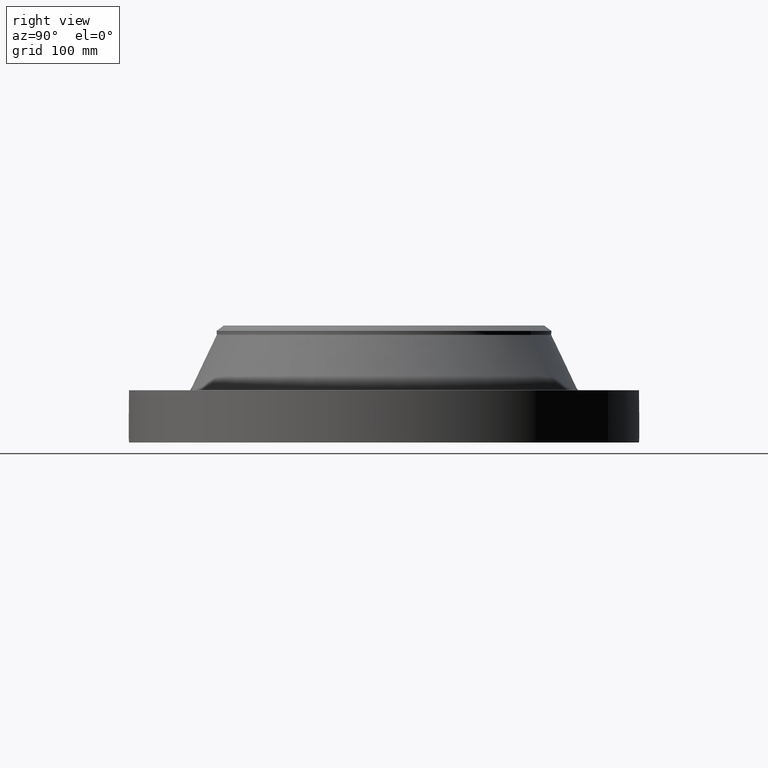
[diagram: clean part render]
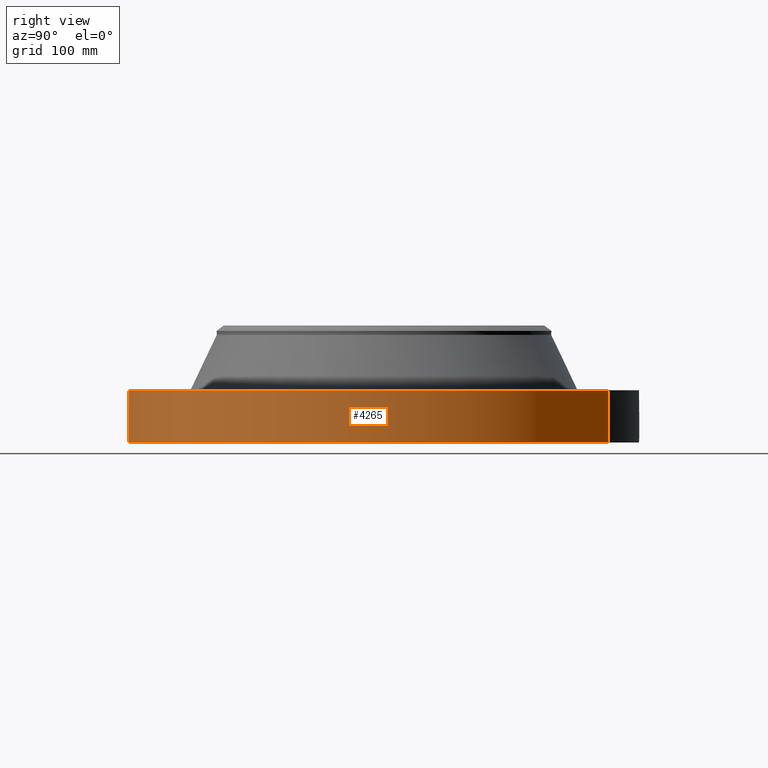
[diagram: same view with one face highlighted and labeled with its STEP entity id]
A machine part, right view. The second image highlights one B-rep face of the part: STEP entity #4265.
In plain terms, the highlighted cylindrical surface (partial cylindrical patch) has radius 387.35 mm, axis along (0, 0, -1).
Its self-contained STEP definition (entity closure, byte-faithful):
#2918=AXIS2_PLACEMENT_3D('Circle Axis2P3D',#2916,#2917,$) ;
#4052=AXIS2_PLACEMENT_3D('Cylinder Axis2P3D',#4049,#4050,#4051) ;
#4169=AXIS2_PLACEMENT_3D('Circle Axis2P3D',#4167,#4168,$) ;
#2916=CARTESIAN_POINT('Axis2P3D Location',(0.,0.,3.12500000001)) ;
#2920=CARTESIAN_POINT('Vertex',(7.31123946374,13.3831340689,3.12500000001)) ;
#2922=CARTESIAN_POINT('Vertex',(-7.31123946374,-13.3831340689,3.12500000001)) ;
#4049=CARTESIAN_POINT('Axis2P3D Location',(0.,0.,3.49750000001)) ;
#4058=CARTESIAN_POINT('Vertex',(-7.31123946374,-13.3831340689,1.67844740731E-015)) ;
#4060=CARTESIAN_POINT('Vertex',(7.31123946374,13.3831340689,1.67844740731E-015)) ;
#4063=CARTESIAN_POINT('Line Origine',(-7.31123946374,-13.3831340689,1.56250000001)) ;
#4068=CARTESIAN_POINT('Line Origine',(7.31123946374,13.3831340689,1.56250000001)) ;
#4167=CARTESIAN_POINT('Axis2P3D Location',(0.,0.,1.67844740731E-015)) ;
#4179=CARTESIAN_POINT('Control Point',(0.000716048945719,-15.2499999833,1.10411846129)) ;
#4180=CARTESIAN_POINT('Control Point',(0.0189700498058,-15.2499991262,1.10408159453)) ;
#4181=CARTESIAN_POINT('Control Point',(0.037220861075,-15.2499652357,1.10262937582)) ;
#4182=CARTESIAN_POINT('Control Point',(0.0552507713436,-15.2498999129,1.09977930477)) ;
#4183=CARTESIAN_POINT('Vertex',(0.000715696379584,-15.2499999833,1.10411851056)) ;
#4185=CARTESIAN_POINT('Vertex',(0.0552419730431,-15.249900197,1.09978071368)) ;
#4189=CARTESIAN_POINT('Control Point',(0.0552418779668,-15.2498999451,1.09978016677)) ;
#4190=CARTESIAN_POINT('Control Point',(0.0956980511667,-15.249753395,1.09536272165)) ;
#4191=CARTESIAN_POINT('Control Point',(0.135516472798,-15.249441984,1.08358726771)) ;
#4192=CARTESIAN_POINT('Control Point',(0.172195687342,-15.2490277935,1.06523274047)) ;
#4193=CARTESIAN_POINT('Vertex',(0.172195687342,-15.2490277935,1.06523274047)) ;
#4197=CARTESIAN_POINT('Control Point',(0.0310152955329,-15.2499684607,0.341189291004)) ;
#4198=CARTESIAN_POINT('Control Point',(0.0961823792048,-15.2498359243,0.349436742329)) ;
#4199=CARTESIAN_POINT('Control Point',(0.159294070897,-15.2493594718,0.37129374276)) ;
#4200=CARTESIAN_POINT('Control Point',(0.21640116623,-15.248588709,0.406098803526)) ;
#4201=CARTESIAN_POINT('Control Point',(0.288819786906,-15.2473275342,0.474189951382)) ;
#4202=CARTESIAN_POINT('Control Point',(0.336428397352,-15.246299475,0.558671465433)) ;
#4203=CARTESIAN_POINT('Control Point',(0.349472608021,-15.2460004618,0.58873297327)) ;
#4204=CARTESIAN_POINT('Control Point',(0.371687709805,-15.2454753167,0.65897082337)) ;
#4205=CARTESIAN_POINT('Control Point',(0.377175371757,-15.2453335919,0.732141211822)) ;
#4206=CARTESIAN_POINT('Control Point',(0.374910276695,-15.2453911794,0.772947961945)) ;
#4207=CARTESIAN_POINT('Control Point',(0.356496007122,-15.2458512497,0.870724334487)) ;
#4208=CARTESIAN_POINT('Control Point',(0.308136761336,-15.2469313737,0.957943273401)) ;
#4209=CARTESIAN_POINT('Control Point',(0.26981806078,-15.2477093275,1.00323966122)) ;
#4210=CARTESIAN_POINT('Control Point',(0.223535755276,-15.2484480491,1.03954181882)) ;
#4211=CARTESIAN_POINT('Control Point',(0.172195687342,-15.2490277935,1.06523274047)) ;
#4212=CARTESIAN_POINT('Vertex',(0.0310152955329,-15.2499684607,0.341189291004)) ;
#4216=CARTESIAN_POINT('Control Point',(0.0310152955329,-15.2499684607,0.341189291004)) ;
#4217=CARTESIAN_POINT('Control Point',(0.0206719970494,-15.2499894969,0.340874570362)) ;
#4218=CARTESIAN_POINT('Control Point',(0.0103211280085,-15.2500000019,0.340936539162)) ;
#4219=CARTESIAN_POINT('Control Point',(-2.72878354802E-006,-15.2500000001,0.341374667805)) ;
#4220=CARTESIAN_POINT('Vertex',(-2.72878354212E-006,-15.2500000001,0.341374667805)) ;
#4224=CARTESIAN_POINT('Control Point',(-0.192625061438,-15.2487834134,0.397413269239)) ;
#4225=CARTESIAN_POINT('Control Point',(-0.149005457481,-15.2493344231,0.372040395926)) ;
#4226=CARTESIAN_POINT('Control Point',(-0.101116385111,-15.2497737091,0.35377986482)) ;
#4227=CARTESIAN_POINT('Control Point',(-0.0508056148697,-15.249999991,0.343530662196)) ;
#4228=CARTESIAN_POINT('Control Point',(-2.72878354801E-006,-15.2500000001,0.341374667805)) ;
#4229=CARTESIAN_POINT('Vertex',(-0.192625061438,-15.2487834134,0.397413269239)) ;
#4233=CARTESIAN_POINT('Control Point',(-0.192625061438,-15.2487834134,0.397413269239)) ;
#4234=CARTESIAN_POINT('Control Point',(-0.249453805363,-15.2480655436,0.430469701738)) ;
#4235=CARTESIAN_POINT('Control Point',(-0.299509285838,-15.2471684578,0.474842708905)) ;
#4236=CARTESIAN_POINT('Control Point',(-0.339646008724,-15.2462572491,0.528972975897)) ;
#4237=CARTESIAN_POINT('Control Point',(-0.38384696057,-15.2451782379,0.627171372499)) ;
#4238=CARTESIAN_POINT('Control Point',(-0.39239497419,-15.2449495017,0.732456544062)) ;
#4239=CARTESIAN_POINT('Control Point',(-0.390268284323,-15.245005748,0.772621208048)) ;
#4240=CARTESIAN_POINT('Control Point',(-0.376095202224,-15.2453740947,0.847526035575)) ;
#4241=CARTESIAN_POINT('Control Point',(-0.343961356285,-15.2461332341,0.915956528788)) ;
#4242=CARTESIAN_POINT('Control Point',(-0.324884417078,-15.2465612266,0.94637825749)) ;
#4243=CARTESIAN_POINT('Control Point',(-0.263166902021,-15.2478271679,1.02273613888)) ;
#4244=CARTESIAN_POINT('Control Point',(-0.180081949082,-15.2490857237,1.07567042785)) ;
#4245=CARTESIAN_POINT('Control Point',(-0.12135492626,-15.2497029243,1.09768573553)) ;
#4246=CARTESIAN_POINT('Control Point',(-0.0601973490823,-15.2500001022,1.10710564637)) ;
#4247=CARTESIAN_POINT('Control Point',(2.58579355455E-005,-15.25,1.1041529843)) ;
#4248=CARTESIAN_POINT('Vertex',(2.58579355465E-005,-15.25,1.1041529843)) ;
#4252=CARTESIAN_POINT('Control Point',(0.000715696369973,-15.2499999833,1.10411851054)) ;
#4253=CARTESIAN_POINT('Control Point',(0.000370801697565,-15.2499999995,1.10413607216)) ;
#4254=CARTESIAN_POINT('Control Point',(2.58579405819E-005,-15.25,1.1041529843)) ;
#2917=DIRECTION('Axis2P3D Direction',(0.,0.,-0.0393700787402)) ;
#4050=DIRECTION('Axis2P3D Direction',(0.,0.,-0.0393700787402)) ;
#4051=DIRECTION('Axis2P3D XDirection',(0.0188750212049,0.0345504945626,0.)) ;
#4064=DIRECTION('Vector Direction',(0.,0.,-0.0393700787402)) ;
#4069=DIRECTION('Vector Direction',(0.,0.,-0.0393700787402)) ;
#4168=DIRECTION('Axis2P3D Direction',(0.,0.,-0.0393700787402)) ;
#4065=VECTOR('Line Direction',#4064,0.0393700787402) ;
#4070=VECTOR('Line Direction',#4069,0.0393700787402) ;
#4173=ORIENTED_EDGE('',*,*,#4171,.F.) ;
#4174=ORIENTED_EDGE('',*,*,#4072,.T.) ;
#4175=ORIENTED_EDGE('',*,*,#2924,.T.) ;
#4176=ORIENTED_EDGE('',*,*,#4067,.F.) ;
#4257=ORIENTED_EDGE('',*,*,#4187,.T.) ;
#4258=ORIENTED_EDGE('',*,*,#4195,.T.) ;
#4259=ORIENTED_EDGE('',*,*,#4214,.F.) ;
#4260=ORIENTED_EDGE('',*,*,#4222,.T.) ;
#4261=ORIENTED_EDGE('',*,*,#4231,.F.) ;
#4262=ORIENTED_EDGE('',*,*,#4250,.T.) ;
#4263=ORIENTED_EDGE('',*,*,#4255,.F.) ;
#4264=FACE_BOUND('',#4256,.T.) ;
#4265=ADVANCED_FACE('PartBody',(#4177,#4264),#4053,.T.) ;
#4178=B_SPLINE_CURVE_WITH_KNOTS('',3,(#4179,#4180,#4181,#4182),.UNSPECIFIED.,.F.,.U.,(4,4),(34.6166020275,36.6417101584),.UNSPECIFIED.) ;
#4188=B_SPLINE_CURVE_WITH_KNOTS('',3,(#4189,#4190,#4191,#4192),.UNSPECIFIED.,.F.,.U.,(4,4),(0.,4.57283674052),.UNSPECIFIED.) ;
#4196=B_SPLINE_CURVE_WITH_KNOTS('',5,(#4197,#4198,#4199,#4200,#4201,#4202,#4203,#4204,#4205,#4206,#4207,#4208,#4209,#4210,#4211),.UNSPECIFIED.,.F.,.U.,(6,3,3,3,6),(0.,11.4156338554,17.2563909844,24.6134540398,35.2811559507),.UNSPECIFIED.) ;
#4215=B_SPLINE_CURVE_WITH_KNOTS('',3,(#4216,#4217,#4218,#4219),.UNSPECIFIED.,.F.,.U.,(4,4),(0.,1.078963782),.UNSPECIFIED.) ;
#4223=B_SPLINE_CURVE_WITH_KNOTS('',4,(#4224,#4225,#4226,#4227,#4228),.UNSPECIFIED.,.F.,.U.,(5,5),(0.,7.07932769303),.UNSPECIFIED.) ;
#4232=B_SPLINE_CURVE_WITH_KNOTS('',5,(#4233,#4234,#4235,#4236,#4237,#4238,#4239,#4240,#4241,#4242,#4243,#4244,#4245,#4246,#4247),.UNSPECIFIED.,.F.,.U.,(6,3,3,3,6),(0.,11.5289130993,18.6079913309,25.0299992158,36.2869665819),.UNSPECIFIED.) ;
#4251=B_SPLINE_CURVE_WITH_KNOTS('',2,(#4252,#4253,#4254),.UNSPECIFIED.,.F.,.U.,(3,3),(1.02181010311,1.04760096341),.UNSPECIFIED.) ;
#2919=CIRCLE('generated circle',#2918,15.2500000001) ;
#4170=CIRCLE('generated circle',#4169,15.2500000001) ;
#4053=CYLINDRICAL_SURFACE('generated cylinder',#4052,15.2500000001) ;
#2924=EDGE_CURVE('',#2921,#2923,#2919,.T.) ;
#4067=EDGE_CURVE('',#4059,#2923,#4066,.F.) ;
#4072=EDGE_CURVE('',#4061,#2921,#4071,.F.) ;
#4171=EDGE_CURVE('',#4061,#4059,#4170,.T.) ;
#4187=EDGE_CURVE('',#4184,#4186,#4178,.T.) ;
#4195=EDGE_CURVE('',#4186,#4194,#4188,.T.) ;
#4214=EDGE_CURVE('',#4213,#4194,#4196,.T.) ;
#4222=EDGE_CURVE('',#4213,#4221,#4215,.T.) ;
#4231=EDGE_CURVE('',#4230,#4221,#4223,.T.) ;
#4250=EDGE_CURVE('',#4230,#4249,#4232,.T.) ;
#4255=EDGE_CURVE('',#4184,#4249,#4251,.T.) ;
#4172=EDGE_LOOP('',(#4173,#4174,#4175,#4176)) ;
#4256=EDGE_LOOP('',(#4257,#4258,#4259,#4260,#4261,#4262,#4263)) ;
#4177=FACE_OUTER_BOUND('',#4172,.T.) ;
#4066=LINE('Line',#4063,#4065) ;
#4071=LINE('Line',#4068,#4070) ;
#2921=VERTEX_POINT('',#2920) ;
#2923=VERTEX_POINT('',#2922) ;
#4059=VERTEX_POINT('',#4058) ;
#4061=VERTEX_POINT('',#4060) ;
#4184=VERTEX_POINT('',#4183) ;
#4186=VERTEX_POINT('',#4185) ;
#4194=VERTEX_POINT('',#4193) ;
#4213=VERTEX_POINT('',#4212) ;
#4221=VERTEX_POINT('',#4220) ;
#4230=VERTEX_POINT('',#4229) ;
#4249=VERTEX_POINT('',#4248) ;